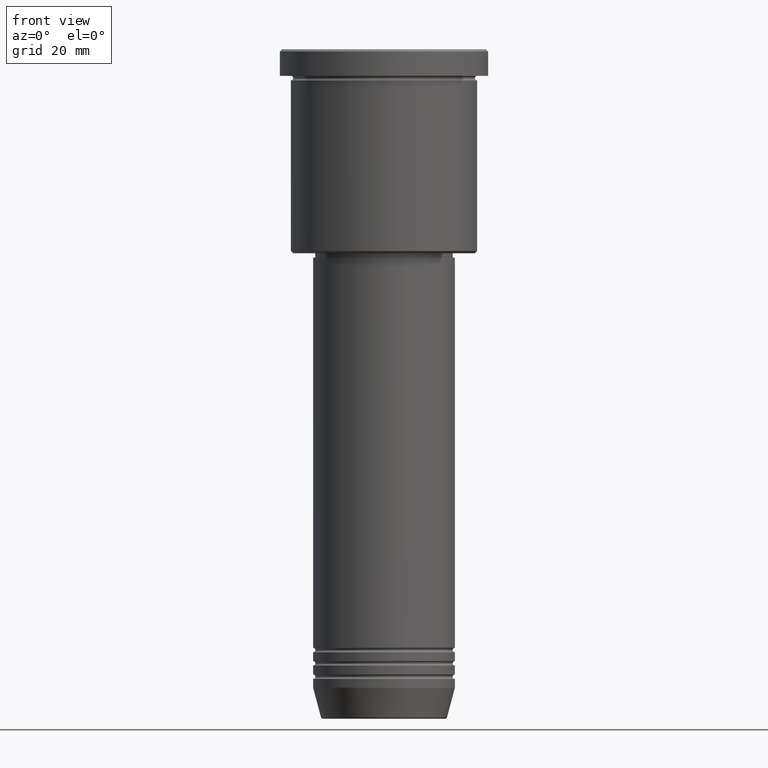
[diagram: clean part render]
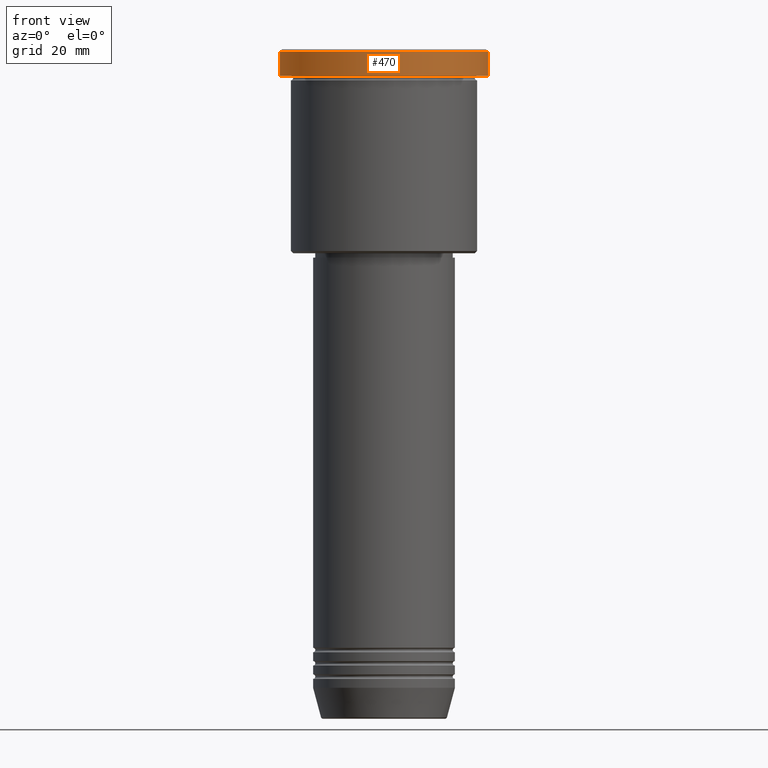
[diagram: same view with one face highlighted and labeled with its STEP entity id]
A machine part, front view. The second image highlights one B-rep face of the part: STEP entity #470.
In plain terms, the highlighted cylindrical surface (partial cylindrical patch) has radius 23.5 mm, axis along (-0, -0, 1).
Its self-contained STEP definition (entity closure, byte-faithful):
#21 = CARTESIAN_POINT ( 'NONE',  ( 23.50000000000000000, 0.000000000000000000, -0.5000000000000004441 ) ) ;
#69 = CARTESIAN_POINT ( 'NONE',  ( -23.50000000000000000, 2.877919977996280320E-15, -0.5000000000000004441 ) ) ;
#142 = VECTOR ( 'NONE', #310, 1000.000000000000000 ) ;
#183 = DIRECTION ( 'NONE',  ( 1.000000000000000000, 0.000000000000000000, 0.000000000000000000 ) ) ;
#193 = FACE_OUTER_BOUND ( 'NONE', #957, .T. ) ;
#208 = ORIENTED_EDGE ( 'NONE', *, *, #455, .F. ) ;
#258 = EDGE_CURVE ( 'NONE', #1101, #986, #431, .T. ) ;
#285 = CYLINDRICAL_SURFACE ( 'NONE', #445, 23.50000000000000000 ) ;
#287 = EDGE_CURVE ( 'NONE', #782, #493, #635, .T. ) ;
#310 = DIRECTION ( 'NONE',  ( -0.000000000000000000, -0.000000000000000000, 1.000000000000000000 ) ) ;
#317 = AXIS2_PLACEMENT_3D ( 'NONE', #428, #436, #976 ) ;
#393 = ORIENTED_EDGE ( 'NONE', *, *, #287, .T. ) ;
#428 = CARTESIAN_POINT ( 'NONE',  ( 0.000000000000000000, 0.000000000000000000, -0.5000000000000004441 ) ) ;
#431 = CIRCLE ( 'NONE', #317, 23.50000000000000000 ) ;
#436 = DIRECTION ( 'NONE',  ( 0.000000000000000000, 0.000000000000000000, -1.000000000000000000 ) ) ;
#445 = AXIS2_PLACEMENT_3D ( 'NONE', #906, #456, #815 ) ;
#455 = EDGE_CURVE ( 'NONE', #782, #986, #615, .T. ) ;
#456 = DIRECTION ( 'NONE',  ( -0.000000000000000000, -0.000000000000000000, 1.000000000000000000 ) ) ;
#470 = ADVANCED_FACE ( 'NONE', ( #193 ), #285, .T. ) ;
#493 = VERTEX_POINT ( 'NONE', #722 ) ;
#542 = VECTOR ( 'NONE', #836, 1000.000000000000000 ) ;
#551 = CARTESIAN_POINT ( 'NONE',  ( -23.50000000000000000, 2.877919977996280320E-15, 0.000000000000000000 ) ) ;
#615 = LINE ( 'NONE', #551, #542 ) ;
#632 = DIRECTION ( 'NONE',  ( -0.000000000000000000, -0.000000000000000000, 1.000000000000000000 ) ) ;
#635 = CIRCLE ( 'NONE', #740, 23.50000000000000000 ) ;
#665 = EDGE_CURVE ( 'NONE', #493, #1101, #1126, .T. ) ;
#693 = CARTESIAN_POINT ( 'NONE',  ( -23.50000000000000000, 2.877919977996280320E-15, -5.999999999999994671 ) ) ;
#722 = CARTESIAN_POINT ( 'NONE',  ( 23.50000000000000000, 0.000000000000000000, -5.999999999999994671 ) ) ;
#740 = AXIS2_PLACEMENT_3D ( 'NONE', #752, #632, #183 ) ;
#752 = CARTESIAN_POINT ( 'NONE',  ( 0.000000000000000000, 0.000000000000000000, -5.999999999999994671 ) ) ;
#760 = CARTESIAN_POINT ( 'NONE',  ( 23.50000000000000000, 0.000000000000000000, 0.000000000000000000 ) ) ;
#782 = VERTEX_POINT ( 'NONE', #693 ) ;
#815 = DIRECTION ( 'NONE',  ( 1.000000000000000000, 0.000000000000000000, 0.000000000000000000 ) ) ;
#836 = DIRECTION ( 'NONE',  ( -0.000000000000000000, -0.000000000000000000, 1.000000000000000000 ) ) ;
#906 = CARTESIAN_POINT ( 'NONE',  ( 0.000000000000000000, 0.000000000000000000, 0.000000000000000000 ) ) ;
#934 = ORIENTED_EDGE ( 'NONE', *, *, #665, .T. ) ;
#957 = EDGE_LOOP ( 'NONE', ( #208, #393, #934, #961 ) ) ;
#961 = ORIENTED_EDGE ( 'NONE', *, *, #258, .T. ) ;
#976 = DIRECTION ( 'NONE',  ( 1.000000000000000000, 0.000000000000000000, 0.000000000000000000 ) ) ;
#986 = VERTEX_POINT ( 'NONE', #69 ) ;
#1101 = VERTEX_POINT ( 'NONE', #21 ) ;
#1126 = LINE ( 'NONE', #760, #142 ) ;